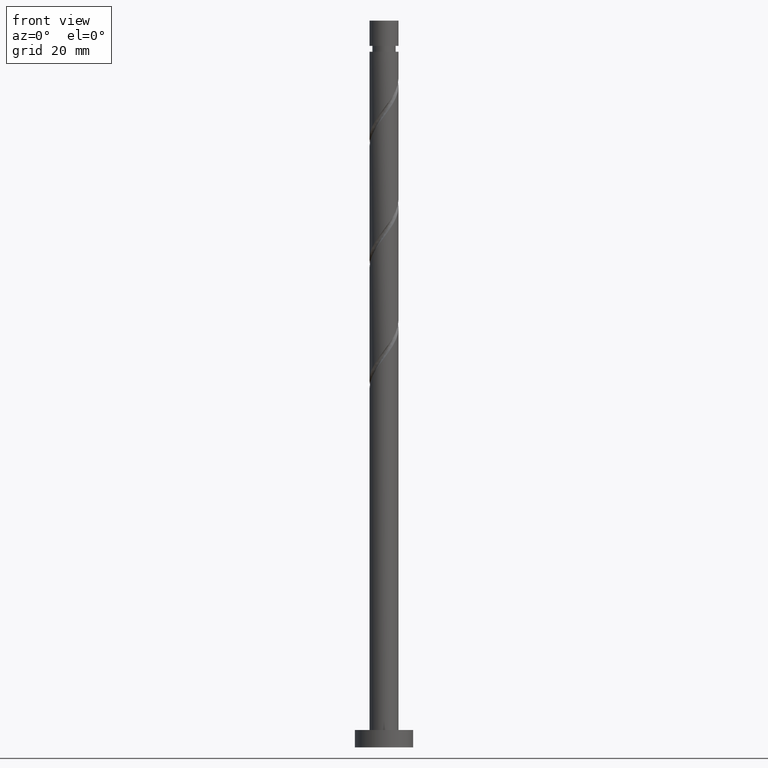
[diagram: clean part render]
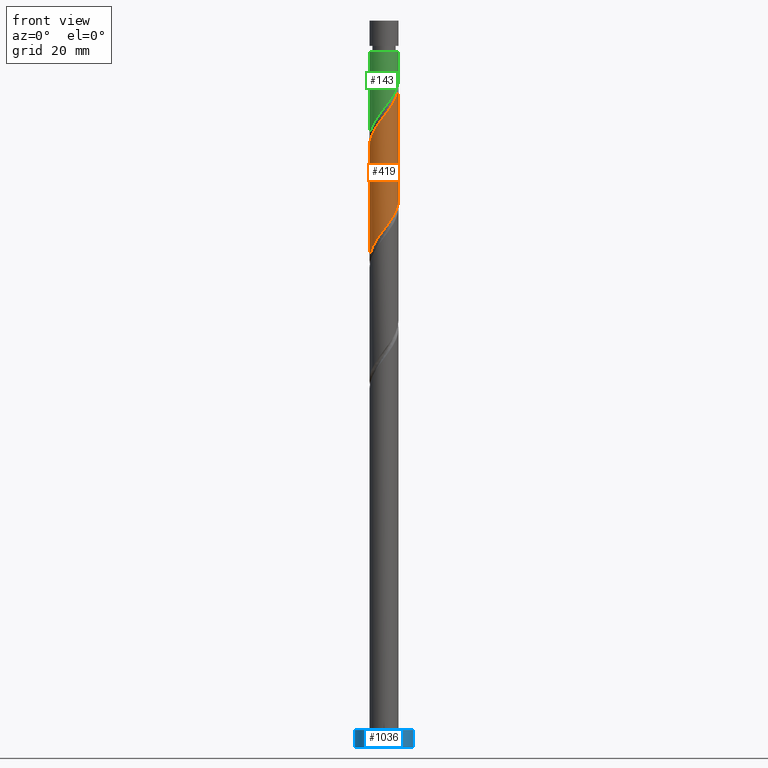
[diagram: same view with three faces highlighted in distinct colors, each labeled with its STEP entity id]
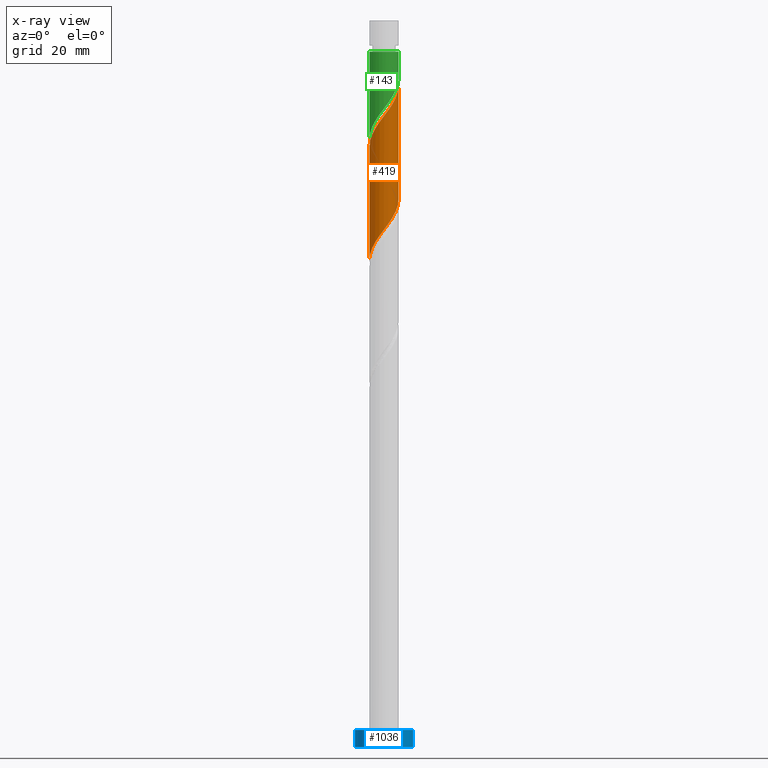
[diagram: x-ray of the same camera — body ghosted, the three highlighted faces saturated]
A machine part, front view with three faces highlighted in distinct colors.
The next image is the same camera in x-ray (body ghosted, the three faces saturated) — at least one of them is partly hidden behind the body in this view.
Their STEP definitions:

[orange] entity #419 — the highlighted cylindrical surface (edge-blend (fillet) strip) has radius 2.5 mm, axis along (-0, -0, -1).
#18 = CARTESIAN_POINT ( 'NONE',  ( -0.8855355973484247967, -2.371204735821960785, 87.87868875543723846 ) ) ;
#27 = CARTESIAN_POINT ( 'NONE',  ( -2.500000000000003109, -1.709213717285447328E-15, 103.3597196473002668 ) ) ;
#35 = CARTESIAN_POINT ( 'NONE',  ( 1.574936960780885853, -1.981504166768773612, 110.7953554221038672 ) ) ;
#84 = VERTEX_POINT ( 'NONE', #636 ) ;
#93 = EDGE_CURVE ( 'NONE', #467, #1178, #1487, .T. ) ;
#108 = EDGE_LOOP ( 'NONE', ( #463, #743, #1547, #494 ) ) ;
#113 = EDGE_CURVE ( 'NONE', #467, #84, #116, .T. ) ;
#116 =( BOUNDED_CURVE ( )  B_SPLINE_CURVE ( 2, ( #27, #1373, #883, #1366, #1022, #905, #912, #1123, #158, #285, #520, #277, #766, #759, #1131, #35, #775, #1495, #534, #1501, #406, #1264, #816 ),
 .UNSPECIFIED., .F., .T. ) 
 B_SPLINE_CURVE_WITH_KNOTS ( ( 3, 2, 2, 2, 2, 2, 2, 2, 2, 2, 2, 3 ),
 ( 0.5545322023138553602, 0.5625000000000000000, 0.5749999999999999556, 0.5875000000000000222, 0.5999999999999999778, 0.6125000000000000444, 0.6250000000000000000, 0.6374999999999999556, 0.6500000000000000222, 0.6624999999999999778, 0.6750000000000000444, 0.6795322023138554712 ),
 .UNSPECIFIED. ) 
 CURVE ( )  GEOMETRIC_REPRESENTATION_ITEM ( )  RATIONAL_B_SPLINE_CURVE ( ( 0.9039174447099425080, 0.9019565955404720281, 0.9090909090909202739, 0.8978984914501365600, 0.9090909090909202739, 0.8978984914501365600, 0.9090909090909202739, 0.8978984914501365600, 0.9090909090909202739, 0.8978984914501365600, 0.9090909090909202739, 0.8978984914501365600, 0.9090909090909202739, 0.8978984914501365600, 0.9090909090909202739, 0.8978984914501365600, 0.9090909090909202739, 0.8978984914501365600, 0.9090909090909202739, 0.8978984914501365600, 0.9090909090909202739, 0.9050328050005844727, 0.9039174447099425080 ) ) 
 REPRESENTATION_ITEM ( '' )  );
#158 = CARTESIAN_POINT ( 'NONE',  ( -1.037592995212146318, -2.274511107092402007, 107.1495220887705528 ) ) ;
#257 = CARTESIAN_POINT ( 'NONE',  ( 1.689672165344842103, -1.842554741020974385, 91.52452208877051021 ) ) ;
#265 = VECTOR ( 'NONE', #1249, 1000.000000000000000 ) ;
#267 = CARTESIAN_POINT ( 'NONE',  ( 2.500000000000000000, 2.998620556641159737E-15, 94.27265786357415323 ) ) ;
#277 = CARTESIAN_POINT ( 'NONE',  ( 0.1094518397581961539, -2.528795264178040902, 108.7120220887704960 ) ) ;
#285 = CARTESIAN_POINT ( 'NONE',  ( -0.6773458265033740489, -2.438849692923737766, 107.6703554221038530 ) ) ;
#326 = EDGE_CURVE ( 'NONE', #1098, #1178, #579, .T. ) ;
#365 = CARTESIAN_POINT ( 'NONE',  ( -0.4974937185533110373, -2.449999999999999734, 88.39952208877053863 ) ) ;
#370 = CARTESIAN_POINT ( 'NONE',  ( 2.500000000000000000, 2.998620556641159737E-15, 94.27265786357415323 ) ) ;
#373 = CARTESIAN_POINT ( 'NONE',  ( 2.176354451295365866, -1.230236279064654603, 92.56618875543715319 ) ) ;
#388 = VECTOR ( 'NONE', #1268, 1000.000000000000000 ) ;
#390 = DIRECTION ( 'NONE',  ( -0.000000000000000000, -0.000000000000000000, -1.000000000000000000 ) ) ;
#406 = CARTESIAN_POINT ( 'NONE',  ( 2.483822478550889556, -0.2839469933725889961, 113.3995220887705102 ) ) ;
#419 = ADVANCED_FACE ( 'NONE', ( #1482 ), #648, .T. ) ;
#428 = LINE ( 'NONE', #779, #388 ) ;
#454 = EDGE_CURVE ( 'NONE', #84, #1098, #428, .T. ) ;
#463 = ORIENTED_EDGE ( 'NONE', *, *, #454, .F. ) ;
#467 = VERTEX_POINT ( 'NONE', #668 ) ;
#494 = ORIENTED_EDGE ( 'NONE', *, *, #326, .F. ) ;
#499 = CARTESIAN_POINT ( 'NONE',  ( -2.110172521261064915, -1.397840163920914369, 85.79535542210386723 ) ) ;
#520 = CARTESIAN_POINT ( 'NONE',  ( -0.2839469933725888851, -2.483822478550889556, 108.1911887554371958 ) ) ;
#525 = CARTESIAN_POINT ( 'NONE',  ( -2.483822478550885560, -0.2839469933725876638, 84.23285542210385302 ) ) ;
#532 = CARTESIAN_POINT ( 'NONE',  ( -2.500000000000000444, -0.1424343436160799004, 84.04550228611473983 ) ) ;
#534 = CARTESIAN_POINT ( 'NONE',  ( 2.274511107092402007, -1.037592995212146318, 112.3578554221038672 ) ) ;
#579 =( BOUNDED_CURVE ( )  B_SPLINE_CURVE ( 2, ( #267, #625, #616, #756, #373, #1475, #257, #854, #749, #1253, #1457, #1491, #365, #18, #1353, #1363, #1114, #499, #869, #1345, #525, #532, #1229 ),
 .UNSPECIFIED., .F., .T. ) 
 B_SPLINE_CURVE_WITH_KNOTS ( ( 3, 2, 2, 2, 2, 2, 2, 2, 2, 2, 2, 3 ),
 ( 0.5545322023138550271, 0.5625000000000000000, 0.5749999999999999556, 0.5875000000000000222, 0.5999999999999999778, 0.6125000000000000444, 0.6250000000000000000, 0.6374999999999999556, 0.6500000000000000222, 0.6624999999999999778, 0.6750000000000000444, 0.6795322023138552492 ),
 .UNSPECIFIED. ) 
 CURVE ( )  GEOMETRIC_REPRESENTATION_ITEM ( )  RATIONAL_B_SPLINE_CURVE ( ( 0.9039174447099356247, 0.9019565955404645896, 0.9090909090909131685, 0.8978984914501292325, 0.9090909090909131685, 0.8978984914501292325, 0.9090909090909131685, 0.8978984914501292325, 0.9090909090909131685, 0.8978984914501292325, 0.9090909090909131685, 0.8978984914501292325, 0.9090909090909131685, 0.8978984914501292325, 0.9090909090909131685, 0.8978984914501292325, 0.9090909090909131685, 0.8978984914501292325, 0.9090909090909131685, 0.8978984914501292325, 0.9090909090909131685, 0.9050328050005775893, 0.9039174447099354026 ) ) 
 REPRESENTATION_ITEM ( '' )  );
#616 = CARTESIAN_POINT ( 'NONE',  ( 2.449999999999999734, -0.4974937185533112038, 93.60785542210385302 ) ) ;
#625 = CARTESIAN_POINT ( 'NONE',  ( 2.500000000000002220, -0.2512594538147986944, 93.93835328816629726 ) ) ;
#636 = CARTESIAN_POINT ( 'NONE',  ( 2.500000000000003109, 1.364372353271716682E-15, 113.7763863139669240 ) ) ;
#648 = CYLINDRICAL_SURFACE ( 'NONE', #848, 2.500000000000000000 ) ;
#668 = CARTESIAN_POINT ( 'NONE',  ( -2.500000000000003109, -1.709213717285447328E-15, 103.3597196473002668 ) ) ;
#743 = ORIENTED_EDGE ( 'NONE', *, *, #113, .F. ) ;
#749 = CARTESIAN_POINT ( 'NONE',  ( 1.037592995212143210, -2.274511107092399342, 90.48285542210385302 ) ) ;
#756 = CARTESIAN_POINT ( 'NONE',  ( 2.371204735821960785, -0.8855355973484250187, 93.08702208877051021 ) ) ;
#759 = CARTESIAN_POINT ( 'NONE',  ( 0.8855355973484250187, -2.371204735821965226, 109.7536887554371390 ) ) ;
#766 = CARTESIAN_POINT ( 'NONE',  ( 0.4974937185533108153, -2.450000000000003730, 109.2328554221038530 ) ) ;
#775 = CARTESIAN_POINT ( 'NONE',  ( 1.842554741020976827, -1.689672165344846322, 111.3161887554372100 ) ) ;
#779 = CARTESIAN_POINT ( 'NONE',  ( 2.500000000000000000, 3.061616997868382648E-16, 125.0000000000000000 ) ) ;
#816 = CARTESIAN_POINT ( 'NONE',  ( 2.500000000000003109, 1.364372353271716682E-15, 113.7763863139669240 ) ) ;
#848 = AXIS2_PLACEMENT_3D ( 'NONE', #1466, #390, #880 ) ;
#854 = CARTESIAN_POINT ( 'NONE',  ( 1.397840163920914369, -2.110172521261064915, 91.00368875543719582 ) ) ;
#869 = CARTESIAN_POINT ( 'NONE',  ( -2.274511107092399342, -1.037592995212143210, 85.27452208877053863 ) ) ;
#880 = DIRECTION ( 'NONE',  ( -1.000000000000000000, 0.000000000000000000, 0.000000000000000000 ) ) ;
#883 = CARTESIAN_POINT ( 'NONE',  ( -2.450000000000003730, -0.4974937185533110373, 104.0245220887705386 ) ) ;
#905 = CARTESIAN_POINT ( 'NONE',  ( -1.981504166768772945, -1.574936960780886075, 105.5870220887704818 ) ) ;
#912 = CARTESIAN_POINT ( 'NONE',  ( -1.689672165344846322, -1.842554741020976827, 106.1078554221038388 ) ) ;
#1016 = CARTESIAN_POINT ( 'NONE',  ( -2.500000000000000000, 0.000000000000000000, 125.0000000000000000 ) ) ;
#1022 = CARTESIAN_POINT ( 'NONE',  ( -2.176354451295370751, -1.230236279064656157, 105.0661887554371958 ) ) ;
#1098 = VERTEX_POINT ( 'NONE', #370 ) ;
#1114 = CARTESIAN_POINT ( 'NONE',  ( -1.842554741020974385, -1.689672165344842103, 86.31618875543719582 ) ) ;
#1119 = CARTESIAN_POINT ( 'NONE',  ( -2.500000000000000000, -3.388441229004510459E-15, 83.85599119690745340 ) ) ;
#1123 = CARTESIAN_POINT ( 'NONE',  ( -1.397840163920916812, -2.110172521261066692, 106.6286887554371674 ) ) ;
#1131 = CARTESIAN_POINT ( 'NONE',  ( 1.230236279064655713, -2.176354451295370751, 110.2745220887705528 ) ) ;
#1178 = VERTEX_POINT ( 'NONE', #1119 ) ;
#1229 = CARTESIAN_POINT ( 'NONE',  ( -2.500000000000000000, -3.388441229004510459E-15, 83.85599119690745340 ) ) ;
#1249 = DIRECTION ( 'NONE',  ( -0.000000000000000000, -0.000000000000000000, -1.000000000000000000 ) ) ;
#1253 = CARTESIAN_POINT ( 'NONE',  ( 0.6773458265033719394, -2.438849692923733326, 89.96202208877053863 ) ) ;
#1264 = CARTESIAN_POINT ( 'NONE',  ( 2.500000000000004441, -0.1424343436160741272, 113.5868752247596660 ) ) ;
#1268 = DIRECTION ( 'NONE',  ( -0.000000000000000000, -0.000000000000000000, -1.000000000000000000 ) ) ;
#1345 = CARTESIAN_POINT ( 'NONE',  ( -2.438849692923733770, -0.6773458265033720505, 84.75368875543721003 ) ) ;
#1353 = CARTESIAN_POINT ( 'NONE',  ( -1.230236279064654381, -2.176354451295365866, 87.35785542210386723 ) ) ;
#1363 = CARTESIAN_POINT ( 'NONE',  ( -1.574936960780884077, -1.981504166768770503, 86.83702208877055284 ) ) ;
#1366 = CARTESIAN_POINT ( 'NONE',  ( -2.371204735821965226, -0.8855355973484251297, 104.5453554221038388 ) ) ;
#1373 = CARTESIAN_POINT ( 'NONE',  ( -2.500000000000002665, -0.2512594538148084644, 103.6940242227081086 ) ) ;
#1457 = CARTESIAN_POINT ( 'NONE',  ( 0.2839469933725874418, -2.483822478550885560, 89.44118875543719582 ) ) ;
#1466 = CARTESIAN_POINT ( 'NONE',  ( 0.000000000000000000, 0.000000000000000000, 125.0000000000000000 ) ) ;
#1475 = CARTESIAN_POINT ( 'NONE',  ( 1.981504166768770503, -1.574936960780884077, 92.04535542210390986 ) ) ;
#1482 = FACE_OUTER_BOUND ( 'NONE', #108, .T. ) ;
#1487 = LINE ( 'NONE', #1016, #265 ) ;
#1491 = CARTESIAN_POINT ( 'NONE',  ( -0.1094518397581972224, -2.528795264178037794, 88.92035542210385302 ) ) ;
#1495 = CARTESIAN_POINT ( 'NONE',  ( 2.110172521261066692, -1.397840163920917256, 111.8370220887704676 ) ) ;
#1501 = CARTESIAN_POINT ( 'NONE',  ( 2.438849692923737766, -0.6773458265033740489, 112.8786887554371532 ) ) ;
#1547 = ORIENTED_EDGE ( 'NONE', *, *, #93, .T. ) ;

[blue] entity #1036 — the highlighted cylindrical surface (edge-blend (fillet) strip) has radius 5 mm, axis along (-0, -0, -1).
#42 = CARTESIAN_POINT ( 'NONE',  ( 0.000000000000000000, 0.000000000000000000, 0.000000000000000000 ) ) ;
#61 = EDGE_CURVE ( 'NONE', #1109, #1002, #925, .T. ) ;
#151 = DIRECTION ( 'NONE',  ( 0.000000000000000000, 0.000000000000000000, 1.000000000000000000 ) ) ;
#170 = ORIENTED_EDGE ( 'NONE', *, *, #1153, .F. ) ;
#239 = AXIS2_PLACEMENT_3D ( 'NONE', #42, #151, #423 ) ;
#266 = AXIS2_PLACEMENT_3D ( 'NONE', #793, #1040, #1511 ) ;
#325 = DIRECTION ( 'NONE',  ( -0.000000000000000000, -0.000000000000000000, -1.000000000000000000 ) ) ;
#349 = CARTESIAN_POINT ( 'NONE',  ( 0.000000000000000000, 0.000000000000000000, 3.000000000000000000 ) ) ;
#423 = DIRECTION ( 'NONE',  ( 1.000000000000000000, 0.000000000000000000, 0.000000000000000000 ) ) ;
#497 = VECTOR ( 'NONE', #1480, 1000.000000000000000 ) ;
#511 = VERTEX_POINT ( 'NONE', #1157 ) ;
#621 = CARTESIAN_POINT ( 'NONE',  ( -5.000000000000000000, 0.000000000000000000, 3.000000000000000000 ) ) ;
#624 = EDGE_LOOP ( 'NONE', ( #170, #945, #1564, #696 ) ) ;
#674 = CARTESIAN_POINT ( 'NONE',  ( 5.000000000000000000, 6.123233995736766282E-16, 3.000000000000000000 ) ) ;
#696 = ORIENTED_EDGE ( 'NONE', *, *, #61, .T. ) ;
#729 = CARTESIAN_POINT ( 'NONE',  ( -5.000000000000000000, 0.000000000000000000, 0.000000000000000000 ) ) ;
#793 = CARTESIAN_POINT ( 'NONE',  ( 0.000000000000000000, 0.000000000000000000, 3.000000000000000000 ) ) ;
#813 = CYLINDRICAL_SURFACE ( 'NONE', #849, 5.000000000000000000 ) ;
#824 = VECTOR ( 'NONE', #1125, 1000.000000000000000 ) ;
#834 = DIRECTION ( 'NONE',  ( -1.000000000000000000, 0.000000000000000000, 0.000000000000000000 ) ) ;
#849 = AXIS2_PLACEMENT_3D ( 'NONE', #349, #325, #834 ) ;
#925 = CIRCLE ( 'NONE', #239, 5.000000000000000000 ) ;
#945 = ORIENTED_EDGE ( 'NONE', *, *, #1474, .F. ) ;
#1002 = VERTEX_POINT ( 'NONE', #1315 ) ;
#1036 = ADVANCED_FACE ( 'NONE', ( #1444 ), #813, .T. ) ;
#1040 = DIRECTION ( 'NONE',  ( 0.000000000000000000, 0.000000000000000000, 1.000000000000000000 ) ) ;
#1109 = VERTEX_POINT ( 'NONE', #729 ) ;
#1125 = DIRECTION ( 'NONE',  ( -0.000000000000000000, -0.000000000000000000, -1.000000000000000000 ) ) ;
#1153 = EDGE_CURVE ( 'NONE', #1438, #1002, #1368, .T. ) ;
#1157 = CARTESIAN_POINT ( 'NONE',  ( -5.000000000000000000, 0.000000000000000000, 3.000000000000000000 ) ) ;
#1216 = CARTESIAN_POINT ( 'NONE',  ( 5.000000000000000000, 6.123233995736766282E-16, 3.000000000000000000 ) ) ;
#1232 = CIRCLE ( 'NONE', #266, 5.000000000000000000 ) ;
#1235 = LINE ( 'NONE', #621, #497 ) ;
#1244 = EDGE_CURVE ( 'NONE', #511, #1109, #1235, .T. ) ;
#1315 = CARTESIAN_POINT ( 'NONE',  ( 5.000000000000000000, 6.123233995736766282E-16, 0.000000000000000000 ) ) ;
#1368 = LINE ( 'NONE', #1216, #824 ) ;
#1438 = VERTEX_POINT ( 'NONE', #674 ) ;
#1444 = FACE_OUTER_BOUND ( 'NONE', #624, .T. ) ;
#1474 = EDGE_CURVE ( 'NONE', #511, #1438, #1232, .T. ) ;
#1480 = DIRECTION ( 'NONE',  ( -0.000000000000000000, -0.000000000000000000, -1.000000000000000000 ) ) ;
#1511 = DIRECTION ( 'NONE',  ( 1.000000000000000000, 0.000000000000000000, 0.000000000000000000 ) ) ;
#1564 = ORIENTED_EDGE ( 'NONE', *, *, #1244, .T. ) ;

[green] entity #143 — the highlighted cylindrical surface (edge-blend (fillet) strip) has radius 2.5 mm, axis along (-0, -0, -1).
#53 = DIRECTION ( 'NONE',  ( -0.000000000000000000, -0.000000000000000000, -1.000000000000000000 ) ) ;
#72 = CARTESIAN_POINT ( 'NONE',  ( -0.8855355973484247967, -2.371204735821960785, 108.7120220887705386 ) ) ;
#81 = DIRECTION ( 'NONE',  ( -0.000000000000000000, -0.000000000000000000, -1.000000000000000000 ) ) ;
#112 = VECTOR ( 'NONE', #536, 1000.000000000000000 ) ;
#114 = CARTESIAN_POINT ( 'NONE',  ( 2.500000000000002220, -0.2512594538147928658, 114.7716866214996401 ) ) ;
#143 = ADVANCED_FACE ( 'NONE', ( #1304 ), #199, .T. ) ;
#163 = EDGE_CURVE ( 'NONE', #519, #1084, #798, .T. ) ;
#183 = EDGE_CURVE ( 'NONE', #222, #519, #1328, .T. ) ;
#199 = CYLINDRICAL_SURFACE ( 'NONE', #822, 2.500000000000000000 ) ;
#214 = CARTESIAN_POINT ( 'NONE',  ( 2.176354451295365866, -1.230236279064654603, 113.3995220887705244 ) ) ;
#222 = VERTEX_POINT ( 'NONE', #608 ) ;
#242 = CARTESIAN_POINT ( 'NONE',  ( 2.500000000000000000, 3.061616997868382648E-16, 125.0000000000000000 ) ) ;
#290 = AXIS2_PLACEMENT_3D ( 'NONE', #679, #53, #1028 ) ;
#306 = CARTESIAN_POINT ( 'NONE',  ( -1.842554741020974385, -1.689672165344842103, 107.1495220887705386 ) ) ;
#308 = CARTESIAN_POINT ( 'NONE',  ( -2.499999999999996891, 0.000000000000000000, 119.6495220887705244 ) ) ;
#311 = CARTESIAN_POINT ( 'NONE',  ( 2.500000000000000000, 8.096275502931130540E-16, 115.1059911969075102 ) ) ;
#357 = CARTESIAN_POINT ( 'NONE',  ( 2.371204735821960785, -0.8855355973484250187, 113.9203554221038530 ) ) ;
#417 = LINE ( 'NONE', #1259, #112 ) ;
#430 = CARTESIAN_POINT ( 'NONE',  ( -2.483822478550885560, -0.2839469933725876638, 105.0661887554371958 ) ) ;
#440 = CARTESIAN_POINT ( 'NONE',  ( -2.274511107092399342, -1.037592995212143210, 106.1078554221038530 ) ) ;
#483 = CARTESIAN_POINT ( 'NONE',  ( -1.230236279064654381, -2.176354451295365866, 108.1911887554371958 ) ) ;
#486 = EDGE_LOOP ( 'NONE', ( #1057, #597, #1218, #1233 ) ) ;
#490 = CARTESIAN_POINT ( 'NONE',  ( -0.4974937185533110373, -2.449999999999999734, 109.2328554221038246 ) ) ;
#519 = VERTEX_POINT ( 'NONE', #311 ) ;
#536 = DIRECTION ( 'NONE',  ( -0.000000000000000000, -0.000000000000000000, -1.000000000000000000 ) ) ;
#542 = EDGE_CURVE ( 'NONE', #222, #1470, #975, .T. ) ;
#553 = CARTESIAN_POINT ( 'NONE',  ( -1.574936960780884077, -1.981504166768770503, 107.6703554221038814 ) ) ;
#597 = ORIENTED_EDGE ( 'NONE', *, *, #542, .T. ) ;
#601 = CARTESIAN_POINT ( 'NONE',  ( 1.689672165344842103, -1.842554741020974385, 112.3578554221038530 ) ) ;
#608 = CARTESIAN_POINT ( 'NONE',  ( 2.499999999999996891, 3.061616997868380676E-16, 119.6495220887705244 ) ) ;
#679 = CARTESIAN_POINT ( 'NONE',  ( 0.000000000000000000, 0.000000000000000000, 119.6495220887705244 ) ) ;
#681 = CARTESIAN_POINT ( 'NONE',  ( -0.1094518397581972224, -2.528795264178037794, 109.7536887554371674 ) ) ;
#697 = CARTESIAN_POINT ( 'NONE',  ( 2.500000000000000000, 8.096275502931131526E-16, 115.1059911969075102 ) ) ;
#724 = CARTESIAN_POINT ( 'NONE',  ( 1.037592995212143210, -2.274511107092399342, 111.3161887554371816 ) ) ;
#789 = CARTESIAN_POINT ( 'NONE',  ( -2.110172521261064915, -1.397840163920914369, 106.6286887554371958 ) ) ;
#798 =( BOUNDED_CURVE ( )  B_SPLINE_CURVE ( 2, ( #697, #114, #1166, #357, #214, #1418, #601, #1088, #724, #1568, #1540, #681, #490, #72, #483, #553, #306, #789, #440, #965, #430, #1447, #845 ),
 .UNSPECIFIED., .F., .T. ) 
 B_SPLINE_CURVE_WITH_KNOTS ( ( 3, 2, 2, 2, 2, 2, 2, 2, 2, 2, 2, 3 ),
 ( 0.3045322023138548051, 0.3125000000000000000, 0.3250000000000000111, 0.3375000000000000222, 0.3499999999999999778, 0.3624999999999999889, 0.3750000000000000000, 0.3875000000000000111, 0.4000000000000000222, 0.4124999999999999778, 0.4249999999999999889, 0.4295322023138550827 ),
 .UNSPECIFIED. ) 
 CURVE ( )  GEOMETRIC_REPRESENTATION_ITEM ( )  RATIONAL_B_SPLINE_CURVE ( ( 0.9039174447099356247, 0.9019565955404644786, 0.9090909090909131685, 0.8978984914501292325, 0.9090909090909131685, 0.8978984914501292325, 0.9090909090909131685, 0.8978984914501292325, 0.9090909090909131685, 0.8978984914501292325, 0.9090909090909131685, 0.8978984914501292325, 0.9090909090909131685, 0.8978984914501292325, 0.9090909090909131685, 0.8978984914501292325, 0.9090909090909131685, 0.8978984914501292325, 0.9090909090909131685, 0.8978984914501292325, 0.9090909090909131685, 0.9050328050005775893, 0.9039174447099354026 ) ) 
 REPRESENTATION_ITEM ( '' )  );
#822 = AXIS2_PLACEMENT_3D ( 'NONE', #1203, #81, #973 ) ;
#845 = CARTESIAN_POINT ( 'NONE',  ( -2.500000000000000000, -1.184455119873257873E-15, 104.6893245302408104 ) ) ;
#965 = CARTESIAN_POINT ( 'NONE',  ( -2.438849692923733770, -0.6773458265033720505, 105.5870220887705386 ) ) ;
#973 = DIRECTION ( 'NONE',  ( -1.000000000000000000, 0.000000000000000000, 0.000000000000000000 ) ) ;
#975 = CIRCLE ( 'NONE', #290, 2.499999999999996891 ) ;
#1028 = DIRECTION ( 'NONE',  ( -1.000000000000000000, 0.000000000000000000, 0.000000000000000000 ) ) ;
#1057 = ORIENTED_EDGE ( 'NONE', *, *, #183, .F. ) ;
#1084 = VERTEX_POINT ( 'NONE', #1453 ) ;
#1088 = CARTESIAN_POINT ( 'NONE',  ( 1.397840163920914369, -2.110172521261064915, 111.8370220887705244 ) ) ;
#1130 = VECTOR ( 'NONE', #1410, 1000.000000000000000 ) ;
#1166 = CARTESIAN_POINT ( 'NONE',  ( 2.449999999999999734, -0.4974937185533112038, 114.4411887554371958 ) ) ;
#1203 = CARTESIAN_POINT ( 'NONE',  ( 0.000000000000000000, 0.000000000000000000, 125.0000000000000000 ) ) ;
#1218 = ORIENTED_EDGE ( 'NONE', *, *, #1570, .T. ) ;
#1233 = ORIENTED_EDGE ( 'NONE', *, *, #163, .F. ) ;
#1259 = CARTESIAN_POINT ( 'NONE',  ( -2.500000000000000000, 0.000000000000000000, 125.0000000000000000 ) ) ;
#1304 = FACE_OUTER_BOUND ( 'NONE', #486, .T. ) ;
#1328 = LINE ( 'NONE', #242, #1130 ) ;
#1410 = DIRECTION ( 'NONE',  ( -0.000000000000000000, -0.000000000000000000, -1.000000000000000000 ) ) ;
#1418 = CARTESIAN_POINT ( 'NONE',  ( 1.981504166768770503, -1.574936960780884077, 112.8786887554372242 ) ) ;
#1447 = CARTESIAN_POINT ( 'NONE',  ( -2.500000000000000000, -0.1424343436160841192, 104.8788356194480968 ) ) ;
#1453 = CARTESIAN_POINT ( 'NONE',  ( -2.500000000000000000, -1.184455119873257873E-15, 104.6893245302408104 ) ) ;
#1470 = VERTEX_POINT ( 'NONE', #308 ) ;
#1540 = CARTESIAN_POINT ( 'NONE',  ( 0.2839469933725874418, -2.483822478550885560, 110.2745220887705386 ) ) ;
#1568 = CARTESIAN_POINT ( 'NONE',  ( 0.6773458265033719394, -2.438849692923733326, 110.7953554221038814 ) ) ;
#1570 = EDGE_CURVE ( 'NONE', #1470, #1084, #417, .T. ) ;